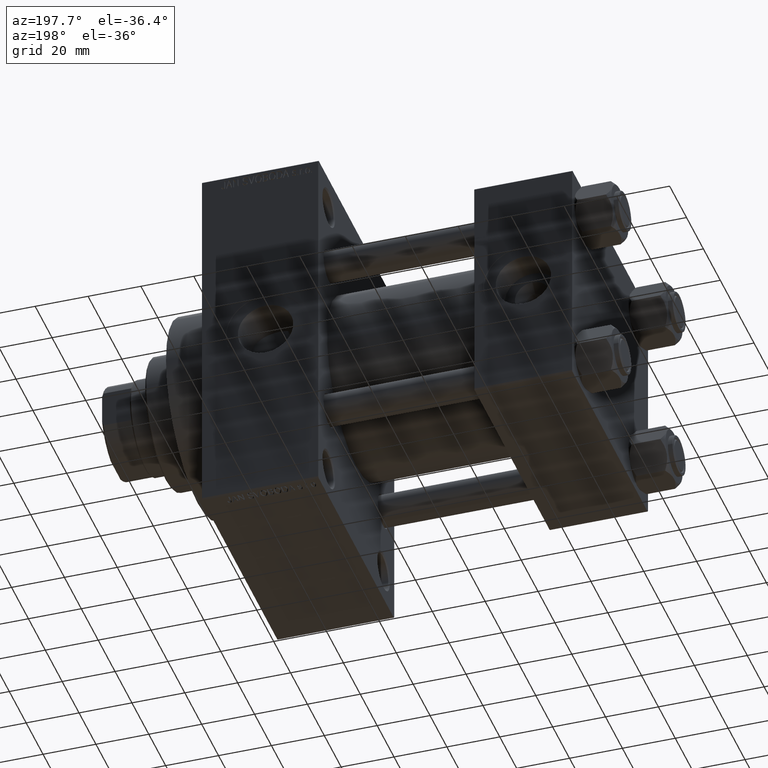
[diagram: clean part render]
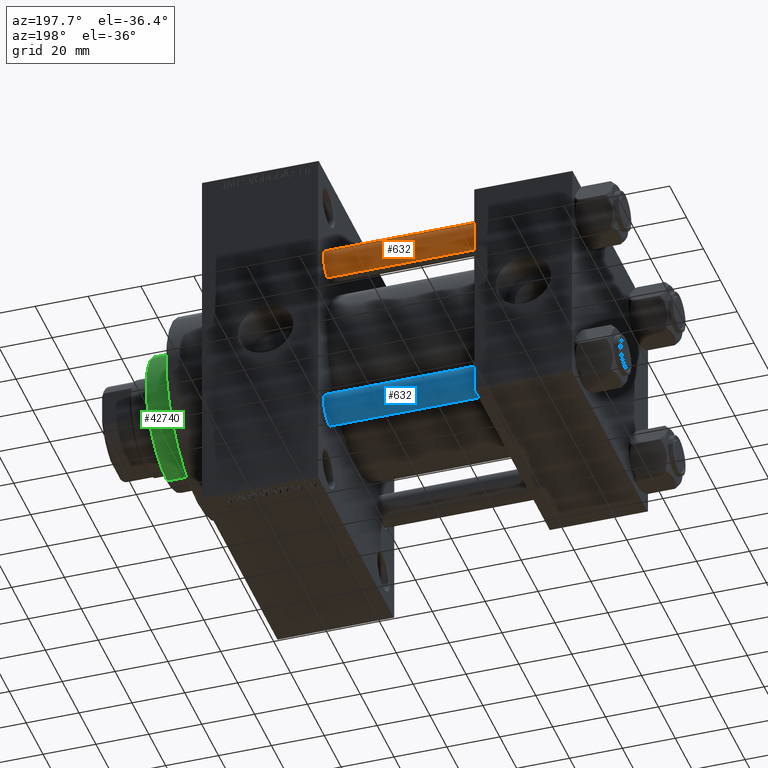
[diagram: same view with three faces highlighted in distinct colors, each labeled with its STEP entity id]
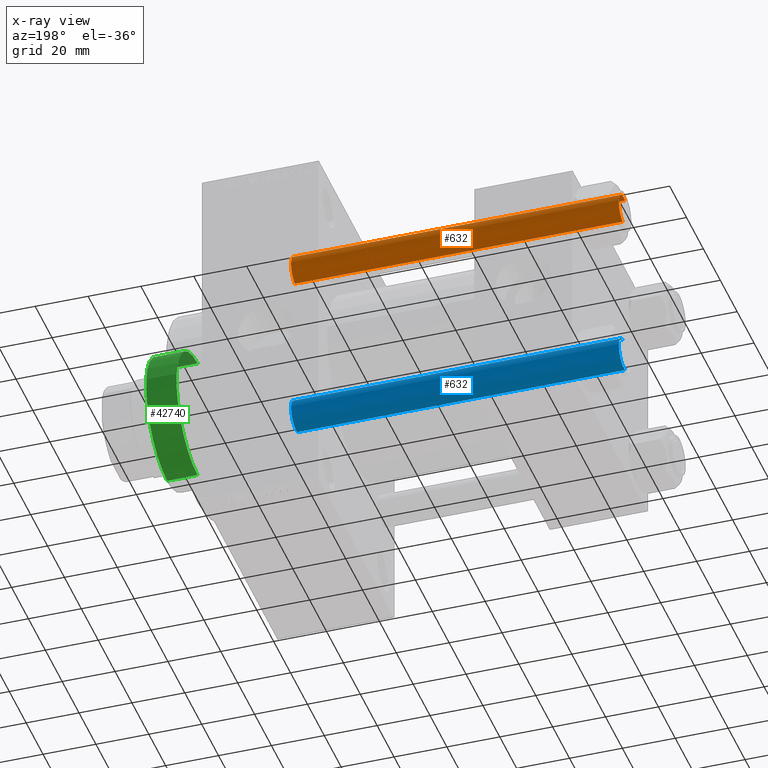
[diagram: x-ray of the same camera — body ghosted, the three highlighted faces saturated]
A machine part, auxiliary view with three faces highlighted in distinct colors.
The next image is the same camera in x-ray (body ghosted, the three faces saturated) — at least one of them is partly hidden behind the body in this view.
Their STEP definitions:

[orange] entity #632 — the highlighted cylindrical surface (edge-blend (fillet) strip) has radius 6 mm, axis along (-1, -0, 0).
#632 = ADVANCED_FACE ( 'NONE', ( #38936 ), #38481, .T. ) ;
#1215 = DIRECTION ( 'NONE',  ( 1.000000000000000000, 0.000000000000000000, 0.000000000000000000 ) ) ;
#1819 = EDGE_LOOP ( 'NONE', ( #20568, #42225, #42469, #19090 ) ) ;
#2642 = DIRECTION ( 'NONE',  ( -0.000000000000000000, -0.000000000000000000, -1.000000000000000000 ) ) ;
#3076 = CARTESIAN_POINT ( 'NONE',  ( 0.000000000000000000, 0.000000000000000000, 124.5000000000000000 ) ) ;
#4616 = VERTEX_POINT ( 'NONE', #7969 ) ;
#4630 = CARTESIAN_POINT ( 'NONE',  ( 6.000000000000000888, 7.347880794884120722E-16, 0.4999999999999865663 ) ) ;
#7919 = CARTESIAN_POINT ( 'NONE',  ( 0.000000000000000000, 0.000000000000000000, 0.4999999999999865663 ) ) ;
#7969 = CARTESIAN_POINT ( 'NONE',  ( -6.000000000000000888, 0.000000000000000000, 124.5000000000000000 ) ) ;
#9591 = DIRECTION ( 'NONE',  ( -1.000000000000000000, 0.000000000000000000, 0.000000000000000000 ) ) ;
#10949 = DIRECTION ( 'NONE',  ( 0.000000000000000000, 0.000000000000000000, -1.000000000000000000 ) ) ;
#11791 = VECTOR ( 'NONE', #2642, 1000.000000000000000 ) ;
#12117 = CARTESIAN_POINT ( 'NONE',  ( -6.000000000000000888, 0.000000000000000000, 0.4999999999999865663 ) ) ;
#13119 = LINE ( 'NONE', #27690, #36109 ) ;
#19090 = ORIENTED_EDGE ( 'NONE', *, *, #25406, .F. ) ;
#20568 = ORIENTED_EDGE ( 'NONE', *, *, #26440, .T. ) ;
#21470 = DIRECTION ( 'NONE',  ( 1.000000000000000000, 0.000000000000000000, 0.000000000000000000 ) ) ;
#22428 = CIRCLE ( 'NONE', #44542, 6.000000000000000888 ) ;
#25406 = EDGE_CURVE ( 'NONE', #4616, #34376, #13119, .T. ) ;
#26243 = EDGE_CURVE ( 'NONE', #41573, #34376, #27728, .T. ) ;
#26440 = EDGE_CURVE ( 'NONE', #4616, #40568, #22428, .T. ) ;
#27690 = CARTESIAN_POINT ( 'NONE',  ( -6.000000000000000888, 0.000000000000000000, 125.0000000000000000 ) ) ;
#27727 = CARTESIAN_POINT ( 'NONE',  ( 0.000000000000000000, 0.000000000000000000, 125.0000000000000000 ) ) ;
#27728 = CIRCLE ( 'NONE', #33823, 6.000000000000000888 ) ;
#28148 = DIRECTION ( 'NONE',  ( -0.000000000000000000, -0.000000000000000000, -1.000000000000000000 ) ) ;
#31912 = AXIS2_PLACEMENT_3D ( 'NONE', #27727, #42299, #9591 ) ;
#32038 = CARTESIAN_POINT ( 'NONE',  ( 6.000000000000000888, 7.347880794884120722E-16, 124.5000000000000000 ) ) ;
#33823 = AXIS2_PLACEMENT_3D ( 'NONE', #7919, #33914, #1215 ) ;
#33914 = DIRECTION ( 'NONE',  ( -0.000000000000000000, -0.000000000000000000, 1.000000000000000000 ) ) ;
#34376 = VERTEX_POINT ( 'NONE', #12117 ) ;
#36060 = CARTESIAN_POINT ( 'NONE',  ( 6.000000000000000888, 7.347880794884120722E-16, 125.0000000000000000 ) ) ;
#36109 = VECTOR ( 'NONE', #28148, 1000.000000000000000 ) ;
#38481 = CYLINDRICAL_SURFACE ( 'NONE', #31912, 6.000000000000000888 ) ;
#38936 = FACE_OUTER_BOUND ( 'NONE', #1819, .T. ) ;
#39412 = LINE ( 'NONE', #36060, #11791 ) ;
#40568 = VERTEX_POINT ( 'NONE', #32038 ) ;
#41573 = VERTEX_POINT ( 'NONE', #4630 ) ;
#42225 = ORIENTED_EDGE ( 'NONE', *, *, #43905, .T. ) ;
#42299 = DIRECTION ( 'NONE',  ( -0.000000000000000000, -0.000000000000000000, -1.000000000000000000 ) ) ;
#42469 = ORIENTED_EDGE ( 'NONE', *, *, #26243, .T. ) ;
#43905 = EDGE_CURVE ( 'NONE', #40568, #41573, #39412, .T. ) ;
#44542 = AXIS2_PLACEMENT_3D ( 'NONE', #3076, #10949, #21470 ) ;

[blue] entity #632 — the highlighted cylindrical surface (edge-blend (fillet) strip) has radius 6 mm, axis along (1, -0, 0).
#632 = ADVANCED_FACE ( 'NONE', ( #38936 ), #38481, .T. ) ;
#1215 = DIRECTION ( 'NONE',  ( 1.000000000000000000, 0.000000000000000000, 0.000000000000000000 ) ) ;
#1819 = EDGE_LOOP ( 'NONE', ( #20568, #42225, #42469, #19090 ) ) ;
#2642 = DIRECTION ( 'NONE',  ( -0.000000000000000000, -0.000000000000000000, -1.000000000000000000 ) ) ;
#3076 = CARTESIAN_POINT ( 'NONE',  ( 0.000000000000000000, 0.000000000000000000, 124.5000000000000000 ) ) ;
#4616 = VERTEX_POINT ( 'NONE', #7969 ) ;
#4630 = CARTESIAN_POINT ( 'NONE',  ( 6.000000000000000888, 7.347880794884120722E-16, 0.4999999999999865663 ) ) ;
#7919 = CARTESIAN_POINT ( 'NONE',  ( 0.000000000000000000, 0.000000000000000000, 0.4999999999999865663 ) ) ;
#7969 = CARTESIAN_POINT ( 'NONE',  ( -6.000000000000000888, 0.000000000000000000, 124.5000000000000000 ) ) ;
#9591 = DIRECTION ( 'NONE',  ( -1.000000000000000000, 0.000000000000000000, 0.000000000000000000 ) ) ;
#10949 = DIRECTION ( 'NONE',  ( 0.000000000000000000, 0.000000000000000000, -1.000000000000000000 ) ) ;
#11791 = VECTOR ( 'NONE', #2642, 1000.000000000000000 ) ;
#12117 = CARTESIAN_POINT ( 'NONE',  ( -6.000000000000000888, 0.000000000000000000, 0.4999999999999865663 ) ) ;
#13119 = LINE ( 'NONE', #27690, #36109 ) ;
#19090 = ORIENTED_EDGE ( 'NONE', *, *, #25406, .F. ) ;
#20568 = ORIENTED_EDGE ( 'NONE', *, *, #26440, .T. ) ;
#21470 = DIRECTION ( 'NONE',  ( 1.000000000000000000, 0.000000000000000000, 0.000000000000000000 ) ) ;
#22428 = CIRCLE ( 'NONE', #44542, 6.000000000000000888 ) ;
#25406 = EDGE_CURVE ( 'NONE', #4616, #34376, #13119, .T. ) ;
#26243 = EDGE_CURVE ( 'NONE', #41573, #34376, #27728, .T. ) ;
#26440 = EDGE_CURVE ( 'NONE', #4616, #40568, #22428, .T. ) ;
#27690 = CARTESIAN_POINT ( 'NONE',  ( -6.000000000000000888, 0.000000000000000000, 125.0000000000000000 ) ) ;
#27727 = CARTESIAN_POINT ( 'NONE',  ( 0.000000000000000000, 0.000000000000000000, 125.0000000000000000 ) ) ;
#27728 = CIRCLE ( 'NONE', #33823, 6.000000000000000888 ) ;
#28148 = DIRECTION ( 'NONE',  ( -0.000000000000000000, -0.000000000000000000, -1.000000000000000000 ) ) ;
#31912 = AXIS2_PLACEMENT_3D ( 'NONE', #27727, #42299, #9591 ) ;
#32038 = CARTESIAN_POINT ( 'NONE',  ( 6.000000000000000888, 7.347880794884120722E-16, 124.5000000000000000 ) ) ;
#33823 = AXIS2_PLACEMENT_3D ( 'NONE', #7919, #33914, #1215 ) ;
#33914 = DIRECTION ( 'NONE',  ( -0.000000000000000000, -0.000000000000000000, 1.000000000000000000 ) ) ;
#34376 = VERTEX_POINT ( 'NONE', #12117 ) ;
#36060 = CARTESIAN_POINT ( 'NONE',  ( 6.000000000000000888, 7.347880794884120722E-16, 125.0000000000000000 ) ) ;
#36109 = VECTOR ( 'NONE', #28148, 1000.000000000000000 ) ;
#38481 = CYLINDRICAL_SURFACE ( 'NONE', #31912, 6.000000000000000888 ) ;
#38936 = FACE_OUTER_BOUND ( 'NONE', #1819, .T. ) ;
#39412 = LINE ( 'NONE', #36060, #11791 ) ;
#40568 = VERTEX_POINT ( 'NONE', #32038 ) ;
#41573 = VERTEX_POINT ( 'NONE', #4630 ) ;
#42225 = ORIENTED_EDGE ( 'NONE', *, *, #43905, .T. ) ;
#42299 = DIRECTION ( 'NONE',  ( -0.000000000000000000, -0.000000000000000000, -1.000000000000000000 ) ) ;
#42469 = ORIENTED_EDGE ( 'NONE', *, *, #26243, .T. ) ;
#43905 = EDGE_CURVE ( 'NONE', #40568, #41573, #39412, .T. ) ;
#44542 = AXIS2_PLACEMENT_3D ( 'NONE', #3076, #10949, #21470 ) ;

[green] entity #42740 — the highlighted cylindrical surface (partial cylindrical patch) has radius 25 mm, axis along (-1, 0, 0).
#373 = DIRECTION ( 'NONE',  ( 0.000000000000000000, 0.000000000000000000, -1.000000000000000000 ) ) ;
#1788 = VERTEX_POINT ( 'NONE', #39422 ) ;
#4626 = CARTESIAN_POINT ( 'NONE',  ( 0.000000000000000000, 0.000000000000000000, 55.26000000000000512 ) ) ;
#5004 = LINE ( 'NONE', #5714, #6493 ) ;
#5714 = CARTESIAN_POINT ( 'NONE',  ( -25.00000000000000000, 0.000000000000000000, 55.26000000000000512 ) ) ;
#5938 = DIRECTION ( 'NONE',  ( 0.000000000000000000, 0.000000000000000000, 1.000000000000000000 ) ) ;
#6493 = VECTOR ( 'NONE', #26970, 1000.000000000000000 ) ;
#7754 = DIRECTION ( 'NONE',  ( -1.000000000000000000, 0.000000000000000000, 0.000000000000000000 ) ) ;
#11059 = ORIENTED_EDGE ( 'NONE', *, *, #37929, .T. ) ;
#12639 = AXIS2_PLACEMENT_3D ( 'NONE', #21632, #373, #18063 ) ;
#14034 = CARTESIAN_POINT ( 'NONE',  ( 0.000000000000000000, 0.000000000000000000, 43.25999999999999801 ) ) ;
#15325 = VERTEX_POINT ( 'NONE', #20868 ) ;
#15878 = VERTEX_POINT ( 'NONE', #24116 ) ;
#16779 = EDGE_LOOP ( 'NONE', ( #35615, #40375, #37507, #11059 ) ) ;
#18063 = DIRECTION ( 'NONE',  ( 1.000000000000000000, 0.000000000000000000, 0.000000000000000000 ) ) ;
#20151 = AXIS2_PLACEMENT_3D ( 'NONE', #4626, #40694, #7754 ) ;
#20868 = CARTESIAN_POINT ( 'NONE',  ( 25.00000000000000000, 3.061616997868383043E-15, 54.76000000000000512 ) ) ;
#21200 = CARTESIAN_POINT ( 'NONE',  ( 25.00000000000000000, 3.061616997868383043E-15, 55.26000000000000512 ) ) ;
#21632 = CARTESIAN_POINT ( 'NONE',  ( 0.000000000000000000, 0.000000000000000000, 54.76000000000000512 ) ) ;
#22073 = FACE_OUTER_BOUND ( 'NONE', #16779, .T. ) ;
#24116 = CARTESIAN_POINT ( 'NONE',  ( -25.00000000000000000, 0.000000000000000000, 54.76000000000000512 ) ) ;
#26970 = DIRECTION ( 'NONE',  ( -0.000000000000000000, -0.000000000000000000, -1.000000000000000000 ) ) ;
#28829 = DIRECTION ( 'NONE',  ( 1.000000000000000000, 0.000000000000000000, 0.000000000000000000 ) ) ;
#28919 = EDGE_CURVE ( 'NONE', #15878, #1788, #5004, .T. ) ;
#30544 = EDGE_CURVE ( 'NONE', #15325, #15878, #46919, .T. ) ;
#30642 = AXIS2_PLACEMENT_3D ( 'NONE', #14034, #5938, #28829 ) ;
#30731 = CARTESIAN_POINT ( 'NONE',  ( 25.00000000000000000, 3.061616997868383043E-15, 43.25999999999999801 ) ) ;
#33109 = VECTOR ( 'NONE', #40280, 1000.000000000000000 ) ;
#35234 = CIRCLE ( 'NONE', #30642, 25.00000000000000000 ) ;
#35615 = ORIENTED_EDGE ( 'NONE', *, *, #43328, .F. ) ;
#36621 = CYLINDRICAL_SURFACE ( 'NONE', #20151, 25.00000000000000000 ) ;
#37507 = ORIENTED_EDGE ( 'NONE', *, *, #28919, .T. ) ;
#37929 = EDGE_CURVE ( 'NONE', #1788, #38113, #35234, .T. ) ;
#38113 = VERTEX_POINT ( 'NONE', #30731 ) ;
#39422 = CARTESIAN_POINT ( 'NONE',  ( -25.00000000000000000, 0.000000000000000000, 43.25999999999999801 ) ) ;
#39813 = LINE ( 'NONE', #21200, #33109 ) ;
#40280 = DIRECTION ( 'NONE',  ( -0.000000000000000000, -0.000000000000000000, -1.000000000000000000 ) ) ;
#40375 = ORIENTED_EDGE ( 'NONE', *, *, #30544, .T. ) ;
#40694 = DIRECTION ( 'NONE',  ( -0.000000000000000000, -0.000000000000000000, -1.000000000000000000 ) ) ;
#42740 = ADVANCED_FACE ( 'NONE', ( #22073 ), #36621, .T. ) ;
#43328 = EDGE_CURVE ( 'NONE', #15325, #38113, #39813, .T. ) ;
#46919 = CIRCLE ( 'NONE', #12639, 25.00000000000000000 ) ;